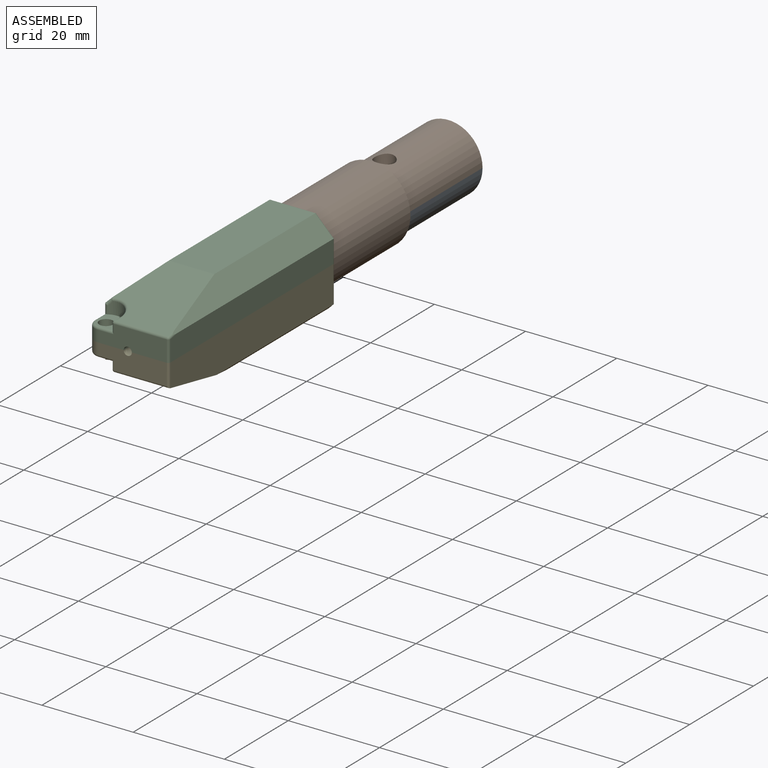
[diagram: assembled view]
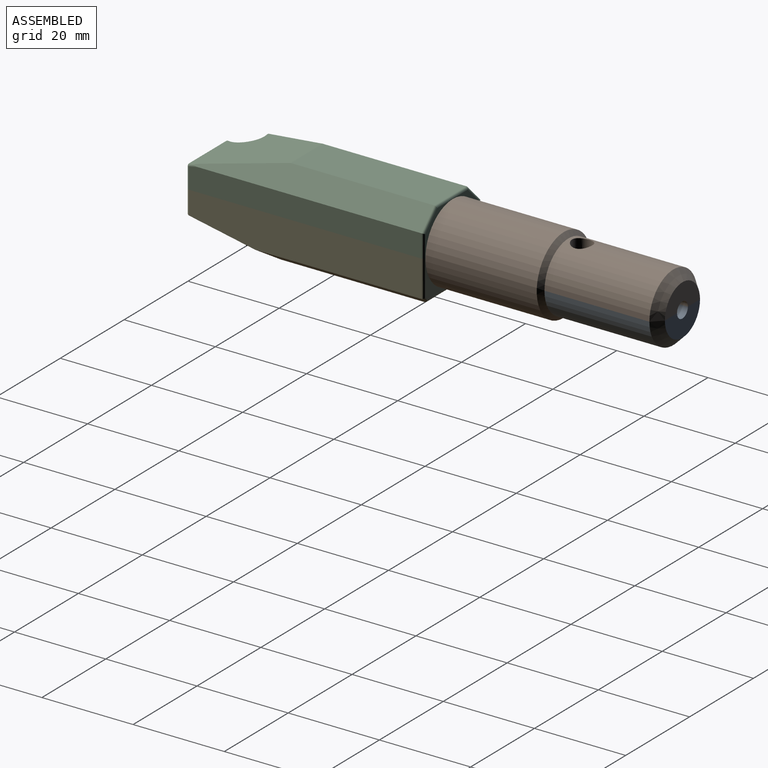
[diagram: assembled view, second angle]
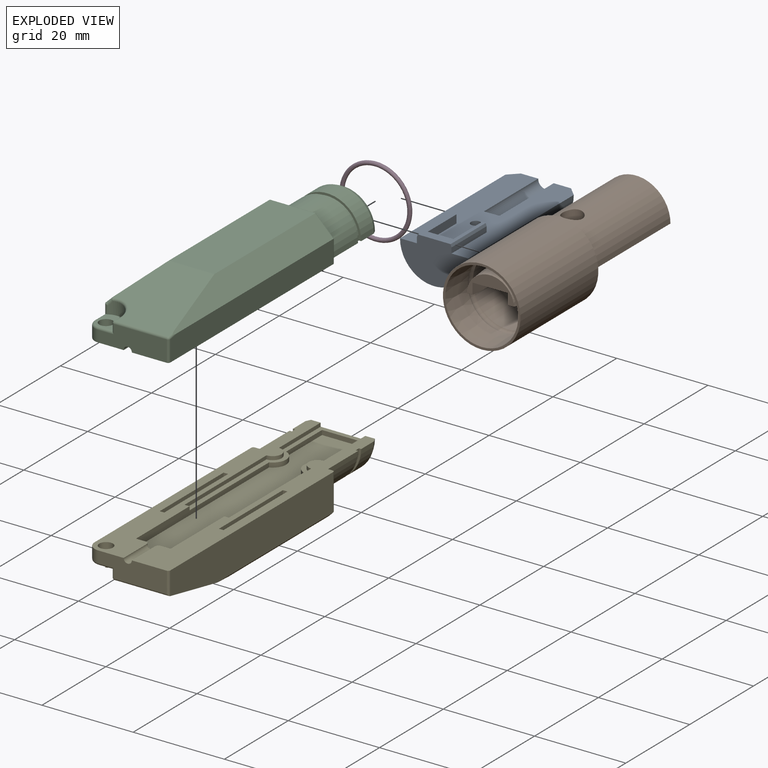
[diagram: exploded view]
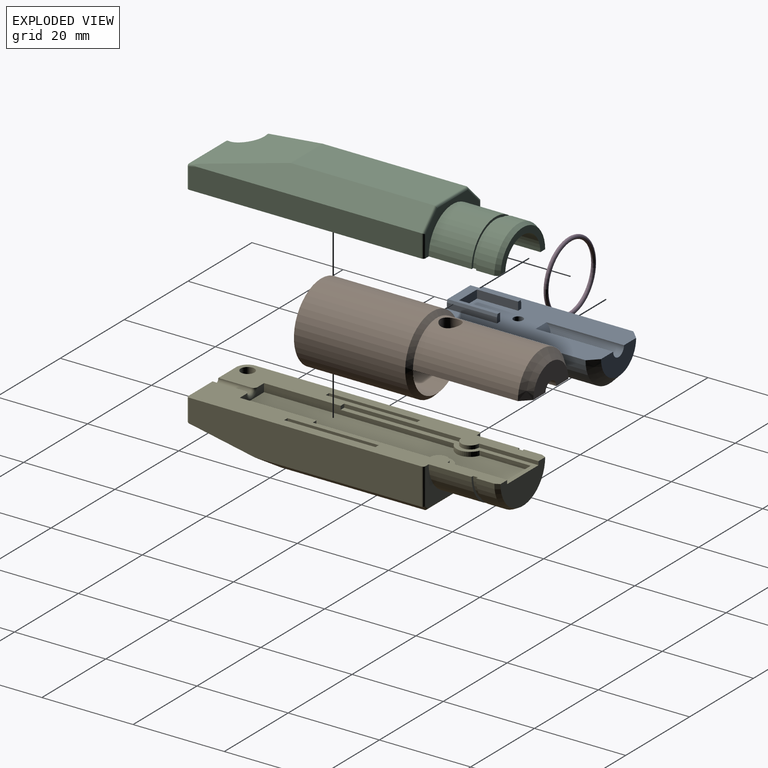
[diagram: exploded view, second angle]
ASSEMBLY  parts=5 mates=4
PART A: 19 faces, bbox 15x35x9.3 mm
  f0: plane 11x5.5mm, normal (0,1,0), area 43mm2, adj f1,f4,f13
  f1: plane 35x15mm, normal (0,0,-1), area 426.5mm2, adj f0,f2,f3,f4,f5,f6,f7,f8
  f2: cylinder r=7.5mm len=33mm, axis (0,1,0), area 777.5mm2, adj f1,f3,f13
  f3: plane 15x9.3mm, normal (0,-1,0), area 101.9mm2, adj f1,f2,f5,f6,f12,f17,f18
  f4: cylinder r=1.7mm len=17mm, axis (0,1,0), area 85mm2, adj f0,f1,f14
  f5: plane 11x1.2mm, normal (1,0,0), area 13.2mm2, adj f1,f3,f11,f18
  f6: plane 11x1.2mm, normal (-1,0,0), area 13.2mm2, adj f1,f3,f7,f17
  f7: plane 1.8x1mm, normal (0,1,0), area 1.7mm2, adj f1,f6,f8,f12,f17
  f8: plane 9x1.8mm, normal (1,0,0), area 16.2mm2, adj f1,f7,f9,f12
  f9: plane 5.6x1.8mm, normal (0,1,0), area 10.1mm2, adj f1,f8,f10,f12
  f10: plane 9x1.8mm, normal (-1,0,0), area 16.2mm2, adj f1,f9,f11,f12
  f11: plane 1.8x1mm, normal (0,1,0), area 1.7mm2, adj f1,f5,f10,f12,f18
  f12: plane 11x7.2mm, normal (0,0,-1), area 28.8mm2, adj f3,f7,f8,f9,f10,f11,f17,f18
  f13: cone r=7.5mm half-angle=45deg, axis (0,-1,0), area 57.8mm2, adj f0,f1,f2
  f14: plane 3.4x1.7mm, normal (0,0.71,-0.71), area 6.4mm2, adj f1,f4
  f15: cylinder r=1.05mm len=6mm, axis (0,0,-1), area 39.6mm2, adj f1,f16
  f16: plane 2.1x2.1mm, normal (0,0,-1), area 3.5mm2, adj f15
  f17: plane 11x0.6mm, normal (-0.95,0,-0.32), area 7mm2, adj f3,f6,f7,f12
  f18: plane 11x0.6mm, normal (0.95,0,-0.32), area 7mm2, adj f3,f5,f11,f12
PART B: 32 faces, bbox 17.4x50.4x17.4 mm
  f0: cylinder r=7.5mm len=23mm, axis (0,1,0), area 526.5mm2, adj f1,f4,f12,f14,f21
  f1: plane 44.7x5.8mm, normal (0,0,-1), area 167.2mm2, adj f0,f2,f5,f6,f7,f9,f11,f12
  f2: plane 11x5.5mm, normal (0,1,0), area 43mm2, adj f1,f4,f11,f12
  f3: plane 10.38x4.9mm, normal (0,-1,0), area 20.6mm2, adj f7,f8,f10,f16,f17,f18
  f4: plane 44.7x5.8mm, normal (0,0,-1), area 167.2mm2, adj f0,f2,f5,f6,f8,f9,f11,f12
  f5: plane 15x7.5mm, normal (0,-1,0), area 40.8mm2, adj f1,f4,f6,f22
  f6: cylinder r=5.5mm len=11mm, axis (0,1,0), area 167.6mm2, adj f1,f4,f5,f16
  f7: plane 35.1x2.7mm, normal (-1,0,0), area 94.3mm2, adj f1,f3,f9,f10,f17
  f8: plane 35.1x2.7mm, normal (1,0,0), area 94.3mm2, adj f3,f4,f9,f10,f18
  f9: plane 7.8x2.7mm, normal (0,-1,0), area 16.5mm2, adj f1,f4,f7,f8,f10,f11
  f10: plane 35.1x7.8mm, normal (0,0,-1), area 269.6mm2, adj f3,f7,f8,f9,f13
  f11: cylinder r=1.7mm len=12.6mm, axis (0,1,0), area 65.3mm2, adj f1,f2,f4,f9,f27,f28,f29,f30
  f12: cone r=7.5mm half-angle=45deg, axis (0,-1,0), area 57.8mm2, adj f0,f1,f2,f4
  f13: cylinder r=1.15mm len=2.3mm, axis (0,0,-1), area 14.5mm2, adj f10,f15
  f14: cylinder r=2.2mm len=4.4mm, axis (0,0,-1), area 36.4mm2, adj f0,f15
  f15: plane 4.4x4.4mm, normal (0,0,1), area 11.1mm2, adj f13,f14
  f16: cone r=5.2mm half-angle=5.7deg, axis (0,1,0), area 49.8mm2, adj f3,f6,f17,f18
  f17: plane 3.01x1.61mm, normal (0,-0.1,-1), area 4.4mm2, adj f1,f3,f7,f16
  f18: plane 3.01x1.61mm, normal (0,-0.1,-1), area 4.4mm2, adj f3,f4,f8,f16
  f19: cylinder r=7.5mm len=15mm, axis (0,-1,0), area 235.6mm2, adj f1,f4,f21,f22
  f20: cylinder r=8.5mm len=24.4mm, axis (0,-1,0), area 1303.1mm2, adj f21,f26
  f21: cone r=8.5mm half-angle=45deg, axis (0,-1,0), area 71.1mm2, adj f0,f19,f20
  f22: cone r=7.5mm half-angle=45deg, axis (0,-1,0), area 6.7mm2, adj f5,f19,f23
  f23: cylinder r=7.6mm len=15.2mm, axis (0,-1,0), area 344.9mm2, adj f22,f24
  f24: torus R=7.1mm, axis (0,-1,0), area 91.6mm2, adj f23,f25
  f25: cone r=7.6mm half-angle=3.5deg, axis (0,-1,0), area 320.2mm2, adj f24,f26
  f26: plane 17x17mm, normal (0,-1,0), area 25.9mm2, adj f20,f25
  f27: plane 2x0.33mm, normal (-1,0,0), area 0.6mm2, adj f11,f28,f30,f31
  f28: plane 1x0.4mm, normal (0,1,0), area 0.4mm2, adj f11,f27,f29,f31
  f29: plane 2x0.33mm, normal (1,0,0), area 0.6mm2, adj f11,f28,f30,f31
  f30: plane 1x0.4mm, normal (0,-1,0), area 0.4mm2, adj f11,f27,f29,f31
  f31: plane 2x1mm, normal (0,0,-1), area 2mm2, adj f27,f28,f29,f30
PART C: 64 faces, bbox 67.6x18.2x10 mm
  f0: plane 67.4x18mm, normal (0,0,-1), area 609.6mm2, adj f2,f3,f4,f6,f7,f9,f10,f11
  f1: plane 5.5x5.5mm, normal (0,0,1), area 18.9mm2, adj f53,f54,f56,f57,f59,f61,f63
  f2: plane 45.1x2.2mm, normal (0,-1,0), area 99.2mm2, adj f0,f17,f18,f52
  f3: cylinder r=7.5mm len=15mm, axis (1,0,0), area 221.5mm2, adj f0,f4,f31
  f4: plane 17x8.5mm, normal (-1,0,0), area 42.4mm2, adj f0,f3,f42,f43,f44,f45,f46
  f5: plane 31.5x10mm, normal (0,0,1), area 315mm2, adj f8,f12,f13,f44
  f6: plane 49x5mm, normal (0,-1,0), area 236.3mm2, adj f0,f13,f45,f55,f56,f57
  f7: plane 51x5mm, normal (0,1,0), area 254.6mm2, adj f0,f12,f42,f47,f49
  f8: plane 19.62x16.25mm, normal (0.2,0,0.98), area 246.1mm2, adj f5,f12,f13,f48,f49,f58,f60
  f9: plane 15x4.59mm, normal (1,0,0), area 60.3mm2, adj f0,f19,f47,f48,f55,f61,f63
  f10: cylinder r=7.5mm len=15mm, axis (1,0,0), area 94.2mm2, adj f0,f32,f51
  f11: plane 14x7mm, normal (-1,0,0), area 29.5mm2, adj f0,f14,f51
  f12: plane 50.02x4mm, normal (0,0.71,0.71), area 234.4mm2, adj f5,f7,f8,f43,f49
  f13: plane 45.62x4mm, normal (0,-0.71,0.71), area 229.4mm2, adj f5,f6,f8,f46,f56,f58
  f14: cylinder r=5.5mm len=12.8mm, axis (-1,0,0), area 221.2mm2, adj f0,f11,f15
  f15: plane 11x5.5mm, normal (-1,0,0), area 47.5mm2, adj f0,f14
  f16: plane 45.1x2.2mm, normal (0,1,0), area 99.2mm2, adj f0,f17,f18,f52
  f17: plane 45.1x8mm, normal (0,0,-1), area 360.8mm2, adj f2,f16,f18,f52
  f18: plane 8x2.2mm, normal (-1,0,0), area 13.1mm2, adj f0,f2,f16,f17,f41
  f19: cylinder r=0.9mm len=7.2mm, axis (-1,0,0), area 20.4mm2, adj f0,f9,f41
  f20: plane 0.8x0.8mm, normal (-1,0,0), area 0.6mm2, adj f0,f21,f23,f38
  f21: plane 19.4x0.8mm, normal (0,1,0), area 15.5mm2, adj f0,f20,f22,f37
  f22: plane 0.8x0.8mm, normal (1,0,0), area 0.6mm2, adj f0,f21,f23,f39
  f23: plane 19.4x0.8mm, normal (0,-1,0), area 15.5mm2, adj f0,f20,f22,f40
  f24: plane 19x0.4mm, normal (0,0,-1), area 7.6mm2, adj f37,f38,f39,f40
  f25: plane 0.8x0.8mm, normal (-1,0,0), area 0.6mm2, adj f0,f26,f28,f34
  f26: plane 19.4x0.8mm, normal (0,1,0), area 15.5mm2, adj f0,f25,f27,f33
  f27: plane 0.8x0.8mm, normal (1,0,0), area 0.6mm2, adj f0,f26,f28,f35
  f28: plane 19.4x0.8mm, normal (0,-1,0), area 15.5mm2, adj f0,f25,f27,f36
  f29: plane 19x0.4mm, normal (0,0,-1), area 7.6mm2, adj f33,f34,f35,f36
  f30: cylinder r=7mm len=14mm, axis (-1,0,0), area 22mm2, adj f0,f31,f32
  f31: plane 15x7.5mm, normal (-1,0,0), area 11.4mm2, adj f0,f3,f30
  f32: plane 15x7.5mm, normal (1,0,0), area 11.4mm2, adj f0,f10,f30
  f33: plane 19.4x0.2mm, normal (0,0.71,-0.71), area 5.4mm2, adj f26,f29,f34,f35
  f34: plane 0.8x0.2mm, normal (-0.71,0,-0.71), area 0.2mm2, adj f25,f29,f33,f36
  f35: plane 0.8x0.2mm, normal (0.71,0,-0.71), area 0.2mm2, adj f27,f29,f33,f36
  f36: plane 19.4x0.2mm, normal (0,-0.71,-0.71), area 5.4mm2, adj f28,f29,f34,f35
  f37: plane 19.4x0.2mm, normal (0,0.71,-0.71), area 5.4mm2, adj f21,f24,f38,f39
  f38: plane 0.8x0.2mm, normal (-0.71,0,-0.71), area 0.2mm2, adj f20,f24,f37,f40
  f39: plane 0.8x0.2mm, normal (0.71,0,-0.71), area 0.2mm2, adj f22,f24,f37,f40
  f40: plane 19.4x0.2mm, normal (0,-0.71,-0.71), area 5.4mm2, adj f23,f24,f38,f39
  f41: torus R=1.7mm, axis (-1,0,0), area 4.7mm2, adj f0,f18,f19
  f42: cylinder r=0.5mm len=5mm, axis (0,0,1), area 3.8mm2, adj f0,f4,f7,f43
  f43: cylinder r=0.5mm len=4.35mm, axis (0,-0.71,0.71), area 4.3mm2, adj f4,f12,f42,f44
  f44: cylinder r=0.5mm len=10mm, axis (0,1,0), area 7.7mm2, adj f4,f5,f43,f46
  f45: cylinder r=0.5mm len=5mm, axis (0,0,-1), area 3.8mm2, adj f0,f4,f6,f46
  f46: cylinder r=0.5mm len=4.35mm, axis (0,-0.71,-0.71), area 4.3mm2, adj f4,f13,f44,f45
  f47: cylinder r=0.5mm len=4.59mm, axis (0,0,-1), area 3.6mm2, adj f0,f7,f9,f50
  f48: cylinder r=0.5mm len=11.54mm, axis (0,1,0), area 7.9mm2, adj f8,f9,f50,f62
  f49: cylinder r=0.5mm len=2.2mm, axis (0.98,0,-0.2), area 1.1mm2, adj f7,f8,f12,f50
  f50: sphere r=0.5mm, area 0.5mm2, adj f47,f48,f49
  f51: cone r=7mm half-angle=26.6deg, axis (1,0,0), area 25.5mm2, adj f0,f10,f11
  f52: plane 8x2.2mm, normal (1,0,0), area 17.6mm2, adj f0,f2,f16,f17
  f53: cylinder r=3.5mm len=5.25mm, axis (0,0,1), area 20mm2, adj f1,f56,f58,f60,f63
  f54: cylinder r=1.5mm len=3mm, axis (0,0,1), area 28.3mm2, adj f0,f1
  f55: cylinder r=2.5mm len=2.5mm, axis (0,0,1), area 9.8mm2, adj f0,f6,f9,f59
  f56: cylinder r=0.5mm len=2.52mm, axis (0,0,1), area 2.2mm2, adj f1,f6,f13,f53,f57,f58
  f57: cylinder r=0.5mm len=3.46mm, axis (-1,0,0), area 2.5mm2, adj f1,f6,f56,f59
  f58: bspline ~1.75x1.64mm, area 1.5mm2, adj f8,f13,f53,f56,f60
  f59: torus R=2mm, axis (0,0,1), area 2.9mm2, adj f1,f55,f57,f61
  f60: bspline ~6x5.21mm, area 6.6mm2, adj f8,f53,f58,f62
  f61: cylinder r=0.5mm len=3.46mm, axis (0,-1,0), area 2.5mm2, adj f1,f9,f59,f63
  f62: sphere r=0.5mm, area 0.5mm2, adj f48,f60,f63
  f63: cylinder r=0.5mm len=2.09mm, axis (0,0,1), area 1.9mm2, adj f1,f9,f53,f61,f62
PART D: 1 faces, bbox 17.1x17.1x0.9 mm
  f0: torus R=7.45mm, axis (0,0,-1), area 130.8mm2
PART E: 65 faces, bbox 67.6x18.2x9 mm
  f0: plane 67.4x8.1mm, normal (0,0,1), area 280.3mm2, adj f1,f2,f5,f6,f8,f9,f13,f17
  f1: plane 49x8mm, normal (0,-1,0), area 364.8mm2, adj f0,f12,f14,f47,f57,f58,f59
  f2: plane 15x4.59mm, normal (1,0,0), area 60.3mm2, adj f0,f4,f50,f51,f53,f57,f63,f64
  f3: plane 5.5x5.5mm, normal (0,0,-1), area 18.9mm2, adj f55,f56,f58,f59,f61,f63,f64
  f4: plane 67.4x8.1mm, normal (0,0,1), area 288.7mm2, adj f2,f5,f6,f8,f9,f11,f13,f16
  f5: plane 7.6x1.8mm, normal (-1,0,0), area 9.1mm2, adj f0,f4,f21,f22,f31,f54
  f6: cylinder r=7.5mm len=15mm, axis (1,0,0), area 221.5mm2, adj f0,f4,f9,f43
  f7: plane 42.6x9.8mm, normal (0,0,1), area 101.8mm2, adj f8,f16,f17,f18,f19,f20,f21,f22
  f8: plane 14x7mm, normal (-1,0,0), area 69.1mm2, adj f0,f4,f7,f16,f17,f52
  f9: plane 17x8.5mm, normal (-1,0,0), area 55.6mm2, adj f0,f4,f6,f45,f46,f47,f48,f49
  f10: plane 31.5x16mm, normal (0,0,-1), area 504mm2, adj f12,f14,f15,f48
  f11: plane 51x8mm, normal (0,1,0), area 387mm2, adj f4,f12,f15,f45,f50
  f12: plane 19.6x18.01mm, normal (0.2,0,-0.98), area 319.4mm2, adj f1,f10,f11,f14,f15,f50,f51,f58
  f13: cylinder r=7.5mm len=15mm, axis (1,0,0), area 94.2mm2, adj f0,f4,f44,f52
  f14: plane 36.5x1mm, normal (0,-0.71,-0.71), area 48.1mm2, adj f1,f10,f12,f49
  f15: plane 36.5x1mm, normal (0,0.71,-0.71), area 48.1mm2, adj f10,f11,f12,f46
  f16: plane 13.05x0.8mm, normal (0,-1,0), area 10.4mm2, adj f4,f7,f8,f25
  f17: plane 13.05x0.8mm, normal (0,1,0), area 10.4mm2, adj f0,f7,f8,f18
  f18: cylinder r=1.95mm len=3.9mm, axis (0,0,1), area 4.9mm2, adj f0,f7,f17,f19
  f19: plane 25.65x0.8mm, normal (0,1,0), area 20.5mm2, adj f0,f7,f18,f20
  f20: plane 1.1x0.8mm, normal (-1,0,0), area 0.9mm2, adj f0,f7,f19,f21
  f21: plane 41.66x1.8mm, normal (0,1,0), area 55.1mm2, adj f0,f5,f7,f20,f30,f31
  f22: plane 41.66x1.8mm, normal (0,-1,0), area 55.1mm2, adj f4,f5,f7,f23,f26,f31
  f23: plane 1.1x0.8mm, normal (-1,0,0), area 0.9mm2, adj f4,f7,f22,f24
  f24: plane 25.65x0.8mm, normal (0,-1,0), area 20.5mm2, adj f4,f7,f23,f25
  f25: cylinder r=1.95mm len=3.9mm, axis (0,0,1), area 4.9mm2, adj f4,f7,f16,f24
  f26: cylinder r=2.95mm len=5.51mm, axis (0,0,1), area 7.1mm2, adj f7,f22,f27,f31
  f27: plane 11.22x1mm, normal (0,-1,0), area 11.2mm2, adj f7,f26,f28,f31
  f28: plane 7.8x1mm, normal (1,0,0), area 7.8mm2, adj f7,f27,f29,f31
  f29: plane 11.22x1mm, normal (0,1,0), area 11.2mm2, adj f7,f28,f30,f31
  f30: cylinder r=2.95mm len=5.51mm, axis (0,0,1), area 7.1mm2, adj f7,f21,f29,f31
  f31: plane 58.4x7.8mm, normal (0,0,1), area 431.4mm2, adj f5,f21,f22,f26,f27,f28,f29,f30
  f32: plane 20x1.2mm, normal (0,-1,0), area 24mm2, adj f0,f33,f35,f36
  f33: plane 1.2x1mm, normal (1,0,0), area 1.2mm2, adj f0,f32,f34,f36
  f34: plane 20x1.2mm, normal (0,1,0), area 24mm2, adj f0,f33,f35,f36
  f35: plane 1.2x1mm, normal (-1,0,0), area 1.2mm2, adj f0,f32,f34,f36
  f36: plane 20x1mm, normal (0,0,1), area 20mm2, adj f32,f33,f34,f35
  f37: plane 20x1.2mm, normal (0,-1,0), area 24mm2, adj f4,f38,f40,f41
  f38: plane 1.2x1mm, normal (1,0,0), area 1.2mm2, adj f4,f37,f39,f41
  f39: plane 20x1.2mm, normal (0,1,0), area 24mm2, adj f4,f38,f40,f41
  f40: plane 1.2x1mm, normal (-1,0,0), area 1.2mm2, adj f4,f37,f39,f41
  f41: plane 20x1mm, normal (0,0,1), area 20mm2, adj f37,f38,f39,f40
  f42: cylinder r=7mm len=14mm, axis (-1,0,0), area 22mm2, adj f0,f4,f43,f44
  f43: plane 15x7.5mm, normal (-1,0,0), area 11.4mm2, adj f0,f4,f6,f42
  f44: plane 15x7.5mm, normal (1,0,0), area 11.4mm2, adj f0,f4,f13,f42
  f45: cylinder r=0.5mm len=8mm, axis (0,0,1), area 6.2mm2, adj f4,f9,f11,f46
  f46: cylinder r=0.5mm len=1.35mm, axis (0,0.71,0.71), area 0.9mm2, adj f9,f15,f45,f48
  f47: cylinder r=0.5mm len=8mm, axis (0,0,-1), area 6.2mm2, adj f0,f1,f9,f49
  f48: cylinder r=0.5mm len=16mm, axis (0,-1,0), area 12.4mm2, adj f9,f10,f46,f49
  f49: cylinder r=0.5mm len=1.35mm, axis (0,0.71,-0.71), area 0.9mm2, adj f9,f14,f47,f48
  f50: cylinder r=0.5mm len=5.1mm, axis (0,0,-1), area 3.9mm2, adj f2,f4,f11,f12,f51
  f51: cylinder r=0.5mm len=12.03mm, axis (0,-1,0), area 8.1mm2, adj f2,f12,f50,f62
  f52: cone r=7mm half-angle=26.6deg, axis (1,0,0), area 25.5mm2, adj f0,f4,f8,f13
  f53: cylinder r=0.9mm len=7.2mm, axis (1,0,0), area 20.4mm2, adj f0,f2,f4,f54
  f54: torus R=1.7mm, axis (-1,0,0), area 4.7mm2, adj f0,f4,f5,f53
  f55: cylinder r=3.5mm len=5.25mm, axis (0,0,-1), area 19.6mm2, adj f3,f58,f60,f64
  f56: cylinder r=1.5mm len=3mm, axis (0,0,-1), area 28.3mm2, adj f0,f3
  f57: cylinder r=2.5mm len=2.5mm, axis (0,0,-1), area 9.8mm2, adj f0,f1,f2,f61
  f58: cylinder r=0.5mm len=3.69mm, axis (0,0,-1), area 3.3mm2, adj f1,f3,f12,f55,f59,f60
  f59: cylinder r=0.5mm len=3.46mm, axis (1,0,0), area 2.5mm2, adj f1,f3,f58,f61
  f60: bspline ~6.37x6mm, area 7.3mm2, adj f12,f55,f58,f62
  f61: torus R=2mm, axis (0,0,-1), area 2.9mm2, adj f3,f57,f59,f63
  f62: sphere r=0.5mm, area 0.5mm2, adj f51,f60,f64
  f63: cylinder r=0.5mm len=3.46mm, axis (0,1,0), area 2.5mm2, adj f2,f3,f61,f64
  f64: cylinder r=0.5mm len=2.09mm, axis (0,0,-1), area 1.9mm2, adj f2,f3,f55,f62,f63
PLACE A rot(axis=(0,-1,0),180deg) t=(-29.95,-76.52,6.27)mm
PLACE B t=(-29.95,-76.52,6.27)mm
PLACE C rot(axis=(0,0,-1),90deg) t=(-29.95,-152.92,-2.73)mm
PLACE D rot(axis=(-1,0,0),90deg) t=(-29.95,-117.02,6.27)mm
PLACE E rot(axis=(0,0,-1),90deg) t=(-29.95,-152.92,-2.73)mm fixed
MATE fastened E.f4 <-> C.f0  axis (0,0,-1) through (-20.95,-178.42,6.27)mm
MATE revolute C.f3 <-> D.f0  axis (0,1,0) through (-29.95,-117.02,6.27)mm
MATE cylindrical C.f3 <-> D.f0  axis (0,1,0) through (-29.95,-111.52,6.27)mm
MATE fastened A.f1 <-> B.f1  axis (0,0,-1) through (-28.25,-76.52,6.27)mm
